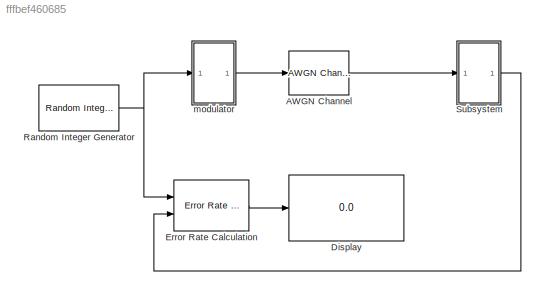
MODEL slx_fffbef460685
KIND model
CONFIG AbsTol = auto
CONFIG EnableMultiTasking = off
CONFIG FixedStep = auto
CONFIG MaxStep = auto
CONFIG MinStep = auto
CONFIG RelTol = 1e-3
CONFIG SampleTimeConstraint = Unconstrained
CONFIG Solver = VariableStepDiscrete
CONFIG SolverName = VariableStepDiscrete
CONFIG StartTime = 0.0
CONFIG StopTime = inf
BLOCK [Reference] AWGN Channel  REF=commchan3/AWGN
Channel
  Ports = [1, 1]
  SourceBlock = commchan3/AWGN\nChannel
  SourceType = AWGN Channel
  UserDataPersistent = on
BLOCK [Display] Display
  Decimation = 1
  Ports = [1]
BLOCK [Reference] Error Rate Calculation  REF=commsink2/Error Rate
Calculation
  Ports = [2, 1]
  SourceBlock = commsink2/Error Rate\nCalculation
  SourceType = Error Rate Calculation
BLOCK [Reference] Random Integer Generator  REF=commrandsrc3/Random Integer
Generator
  Ports = [0, 1]
  SourceBlock = commrandsrc3/Random Integer\nGenerator
  SourceType = Random Integer Generator
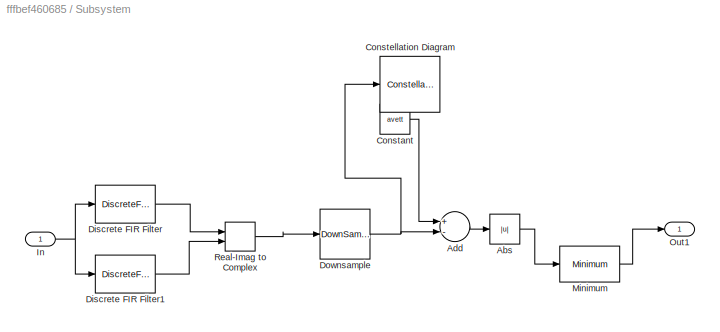
BLOCK [SubSystem] Subsystem
  Ports = [1, 1]
  RequestExecContextInheritance = off
  Variant = off
BLOCK [Abs] Subsystem/Abs
  SaturateOnIntegerOverflow = off
BLOCK [Sum] Subsystem/Add
  InputSameDT = off
  Inputs = +-
  OutDataTypeStr = Inherit: Inherit via internal rule
  Ports = [2, 1]
  SaturateOnIntegerOverflow = off
BLOCK [Constant] Subsystem/Constant
  SampleTime = T
  Value = avett
BLOCK [ConstellationDiagram] Subsystem/Constellation Diagram
  Ports = [1]
  ScopeSpecificationString = comm.scopes.ConstellationDiagramBlockCfg('CurrentConfiguration', extmgr.ConfigurationSet(extmgr.Configuration('Core','General UI',true),extmgr.Configuration('Core','Source UI',true),extmgr.Configuration('Sources','WiredSimulink',true),extmgr.Configuration('Sources','SimulinkEvent',false),extmgr.Configuration('Sources','Simulink',false),extmgr.Configuration('Sources','File',false),extmgr.Configurat...<+2767ch>
BLOCK [DiscreteFir] Subsystem/Discrete FIR Filter
  Coefficients = -sqrt(2/T)*cos(2*pi*((-W+1):0)/W)/W
  InputPortMap = u0
  InputProcessing = Columns as channels (frame based)
  OutputPortMap = o0
  Ports = [1, 1]
BLOCK [DiscreteFir] Subsystem/Discrete FIR Filter1
  Coefficients = -sqrt(2/T)*sin(2*pi*((-W+1):0)/W)/W
  InputPortMap = u0
  InputProcessing = Columns as channels (frame based)
  OutputPortMap = o0
  Ports = [1, 1]
BLOCK [DownSample] Subsystem/Downsample
  InputProcessing = Elements as channels (sample based)
  N = W
  RateOptions = Allow multirate processing
  phase = W-1
BLOCK [Inport] Subsystem/In
  IconDisplay = Port number
BLOCK [Reference] Subsystem/Minimum  REF=dspstat3/Minimum
  Ports = [1, 1]
  SourceBlock = dspstat3/Minimum
  SourceType = Minimum
  UserDataPersistent = on
BLOCK [Outport] Subsystem/Out1
  IconDisplay = Port number
BLOCK [RealImagToComplex] Subsystem/Real-Imag to Complex
  Ports = [2, 1]
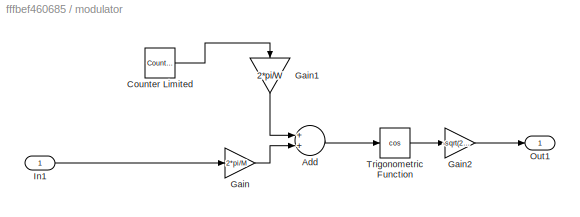
BLOCK [SubSystem] modulator 
  Ports = [1, 1]
  RequestExecContextInheritance = off
  Variant = off
BLOCK [Sum] modulator /Add
  InputSameDT = off
  OutDataTypeStr = Inherit: Inherit via internal rule
  Ports = [2, 1]
  SaturateOnIntegerOverflow = off
BLOCK [Reference] modulator /Counter Limited  REF=simulink/Sources/Counter
Limited
  Ports = [0, 1]
  SourceBlock = simulink/Sources/Counter\nLimited
  SourceType = Counter Limited
BLOCK [Gain] modulator /Gain
  Gain = 2*pi/M
  OutDataTypeStr = Inherit: Inherit via internal rule
  ParamDataTypeStr = Inherit: Inherit via internal rule
  SaturateOnIntegerOverflow = off
BLOCK [Gain] modulator /Gain1
  Gain = 2*pi/W
  OutDataTypeStr = Inherit: Inherit via internal rule
  ParamDataTypeStr = Inherit: Inherit via internal rule
  SaturateOnIntegerOverflow = off
BLOCK [Gain] modulator /Gain2
  Gain = -sqrt(2/T)
  OutDataTypeStr = Inherit: Inherit via internal rule
  ParamDataTypeStr = Inherit: Inherit via internal rule
  SaturateOnIntegerOverflow = off
BLOCK [Inport] modulator /In1
  IconDisplay = Port number
BLOCK [Outport] modulator /Out1
  IconDisplay = Port number
BLOCK [Trigonometry] modulator /Trigonometric Function
  Operator = cos
  Ports = [1, 1]
LINE AWGN Channel:1 -> Subsystem:1
LINE Error Rate Calculation:1 -> Display:1
NET Random Integer Generator:1 -> Error Rate Calculation:1, modulator :1
LINE Subsystem/Abs:1 -> Subsystem/Minimum:1
LINE Subsystem/Add:1 -> Subsystem/Abs:1
LINE Subsystem/Constant:1 -> Subsystem/Add:1
LINE Subsystem/Discrete FIR Filter1:1 -> Subsystem/Real-Imag to Complex:2
LINE Subsystem/Discrete FIR Filter:1 -> Subsystem/Real-Imag to Complex:1
NET Subsystem/Downsample:1 -> Subsystem/Add:2, Subsystem/Constellation Diagram:1
NET Subsystem/In:1 -> Subsystem/Discrete FIR Filter1:1, Subsystem/Discrete FIR Filter:1
LINE Subsystem/Minimum:1 -> Subsystem/Out1:1
LINE Subsystem/Real-Imag to Complex:1 -> Subsystem/Downsample:1
LINE Subsystem:1 -> Error Rate Calculation:2
LINE modulator /Add:1 -> modulator /Trigonometric Function:1
LINE modulator /Counter Limited:1 -> modulator /Gain1:1
LINE modulator /Gain1:1 -> modulator /Add:1
LINE modulator /Gain2:1 -> modulator /Out1:1
LINE modulator /Gain:1 -> modulator /Add:2
LINE modulator /In1:1 -> modulator /Gain:1
LINE modulator /Trigonometric Function:1 -> modulator /Gain2:1
LINE modulator :1 -> AWGN Channel:1
note: NET lines group one-source signal fan-out (src -> all destinations, sorted); 1:1 wires keep LINE
